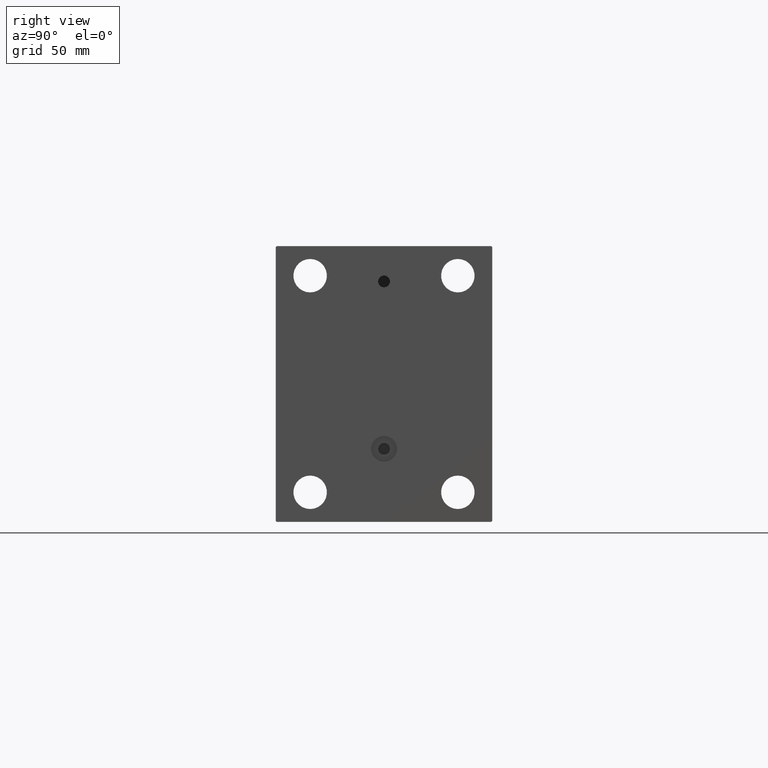
[diagram: clean part render]
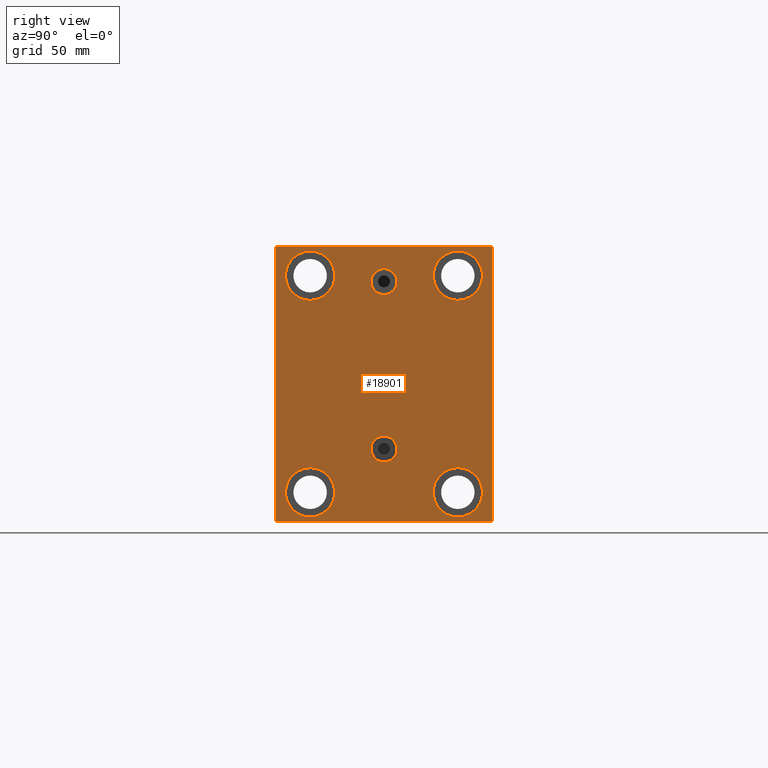
[diagram: same view with one face highlighted and labeled with its STEP entity id]
A machine part, right view. The second image highlights one B-rep face of the part: STEP entity #18901.
In plain terms, the highlighted planar face has unit normal (1, 0, 0).
Its self-contained STEP definition (entity closure, byte-faithful):
#317 = DIRECTION ( 'NONE',  ( 0.000000000000000000, 0.000000000000000000, 1.000000000000000000 ) ) ;
#388 = VERTEX_POINT ( 'NONE', #16621 ) ;
#605 = CARTESIAN_POINT ( 'NONE',  ( 253.0000000000000000, -62.25000000000230216, -62.24999999999712941 ) ) ;
#803 = CARTESIAN_POINT ( 'NONE',  ( 253.0000000000000000, 55.00000000000002132, -69.50000000000002842 ) ) ;
#809 = DIRECTION ( 'NONE',  ( 0.000000000000000000, 0.000000000000000000, 1.000000000000000000 ) ) ;
#1066 = VERTEX_POINT ( 'NONE', #24111 ) ;
#1365 = VERTEX_POINT ( 'NONE', #12222 ) ;
#1414 = VERTEX_POINT ( 'NONE', #22067 ) ;
#1540 = ORIENTED_EDGE ( 'NONE', *, *, #11971, .T. ) ;
#1947 = DIRECTION ( 'NONE',  ( 0.000000000000000000, 0.000000000000000000, 1.000000000000000000 ) ) ;
#1994 = DIRECTION ( 'NONE',  ( 0.000000000000000000, -1.000000000000000000, -1.261617073437677999E-16 ) ) ;
#2153 = CARTESIAN_POINT ( 'NONE',  ( 253.0000000000000000, 4.041334437186266200E-15, -39.58000000000000540 ) ) ;
#2290 = EDGE_CURVE ( 'NONE', #39698, #36345, #36201, .T. ) ;
#2447 = CARTESIAN_POINT ( 'NONE',  ( 253.0000000000000000, 55.00000000000002132, -70.00000000000000000 ) ) ;
#2729 = VECTOR ( 'NONE', #5757, 1000.000000000000000 ) ;
#3494 = VECTOR ( 'NONE', #14654, 1000.000000000000000 ) ;
#3721 = ORIENTED_EDGE ( 'NONE', *, *, #38364, .T. ) ;
#3973 = CARTESIAN_POINT ( 'NONE',  ( 253.0000000000000000, -7.970046508789298136E-15, 58.58000000000000540 ) ) ;
#3991 = AXIS2_PLACEMENT_3D ( 'NONE', #12975, #37383, #27029 ) ;
#4043 = DIRECTION ( 'NONE',  ( -1.000000000000000000, -0.000000000000000000, -0.000000000000000000 ) ) ;
#4110 = EDGE_LOOP ( 'NONE', ( #39768, #28266 ) ) ;
#4228 = CIRCLE ( 'NONE', #40256, 12.49999999999999645 ) ;
#4486 = VECTOR ( 'NONE', #1994, 1000.000000000000000 ) ;
#4827 = AXIS2_PLACEMENT_3D ( 'NONE', #39344, #18862, #22315 ) ;
#4860 = EDGE_LOOP ( 'NONE', ( #19212, #13251 ) ) ;
#4899 = EDGE_CURVE ( 'NONE', #33232, #37820, #39439, .T. ) ;
#4950 = CARTESIAN_POINT ( 'NONE',  ( 253.0000000000000000, 37.49999999999997868, -54.99999999999999289 ) ) ;
#5209 = ORIENTED_EDGE ( 'NONE', *, *, #12134, .T. ) ;
#5295 = AXIS2_PLACEMENT_3D ( 'NONE', #25244, #4043, #42728 ) ;
#5328 = LINE ( 'NONE', #23517, #24740 ) ;
#5558 = EDGE_CURVE ( 'NONE', #20883, #17616, #25520, .T. ) ;
#5757 = DIRECTION ( 'NONE',  ( -0.000000000000000000, -0.7071067811865279218, 0.7071067811865671127 ) ) ;
#5835 = FACE_OUTER_BOUND ( 'NONE', #42460, .T. ) ;
#5882 = DIRECTION ( 'NONE',  ( 0.000000000000000000, 0.000000000000000000, 1.000000000000000000 ) ) ;
#6310 = CIRCLE ( 'NONE', #37231, 12.49999999999999645 ) ;
#6511 = PLANE ( 'NONE',  #3991 ) ;
#6851 = EDGE_CURVE ( 'NONE', #37820, #33232, #30551, .T. ) ;
#7005 = VERTEX_POINT ( 'NONE', #7552 ) ;
#7106 = EDGE_LOOP ( 'NONE', ( #16206, #20495 ) ) ;
#7297 = DIRECTION ( 'NONE',  ( 0.000000000000000000, 0.000000000000000000, 1.000000000000000000 ) ) ;
#7552 = CARTESIAN_POINT ( 'NONE',  ( 253.0000000000000000, -37.50000000000000711, 67.50000000000000000 ) ) ;
#8750 = CIRCLE ( 'NONE', #24217, 12.49999999999999645 ) ;
#9196 = VERTEX_POINT ( 'NONE', #10287 ) ;
#9277 = FACE_BOUND ( 'NONE', #26364, .T. ) ;
#9510 = FACE_BOUND ( 'NONE', #4860, .T. ) ;
#9991 = DIRECTION ( 'NONE',  ( -1.000000000000000000, -0.000000000000000000, -0.000000000000000000 ) ) ;
#10287 = CARTESIAN_POINT ( 'NONE',  ( 253.0000000000000000, -37.50000000000000711, 42.50000000000000711 ) ) ;
#11358 = DIRECTION ( 'NONE',  ( 1.000000000000000000, 0.000000000000000000, 0.000000000000000000 ) ) ;
#11574 = DIRECTION ( 'NONE',  ( 0.000000000000000000, 1.000000000000000000, 2.523234146875355012E-16 ) ) ;
#11971 = EDGE_CURVE ( 'NONE', #20547, #1414, #44802, .T. ) ;
#12134 = EDGE_CURVE ( 'NONE', #32449, #19645, #4228, .T. ) ;
#12222 = CARTESIAN_POINT ( 'NONE',  ( 253.0000000000000000, -55.00000000000000711, -69.50000000000001421 ) ) ;
#12550 = EDGE_CURVE ( 'NONE', #25036, #1066, #16013, .T. ) ;
#12632 = ORIENTED_EDGE ( 'NONE', *, *, #27614, .T. ) ;
#12975 = CARTESIAN_POINT ( 'NONE',  ( 253.0000000000000000, 0.000000000000000000, 0.000000000000000000 ) ) ;
#13016 = CARTESIAN_POINT ( 'NONE',  ( 253.0000000000000000, -54.50000000000003553, -70.00000000000002842 ) ) ;
#13204 = FACE_BOUND ( 'NONE', #21681, .T. ) ;
#13251 = ORIENTED_EDGE ( 'NONE', *, *, #39453, .T. ) ;
#13421 = FACE_BOUND ( 'NONE', #43936, .T. ) ;
#13721 = AXIS2_PLACEMENT_3D ( 'NONE', #41995, #9991, #317 ) ;
#14076 = CARTESIAN_POINT ( 'NONE',  ( 253.0000000000000000, -55.00000000000000711, 69.50000000000004263 ) ) ;
#14089 = DIRECTION ( 'NONE',  ( -0.000000000000000000, 0.7071067811865474617, 0.7071067811865474617 ) ) ;
#14654 = DIRECTION ( 'NONE',  ( -0.000000000000000000, 0.7071067811865181518, -0.7071067811865769936 ) ) ;
#15777 = DIRECTION ( 'NONE',  ( -1.000000000000000000, -0.000000000000000000, -0.000000000000000000 ) ) ;
#16013 = CIRCLE ( 'NONE', #20406, 12.49999999999999645 ) ;
#16206 = ORIENTED_EDGE ( 'NONE', *, *, #36609, .T. ) ;
#16480 = LINE ( 'NONE', #29868, #4486 ) ;
#16526 = VERTEX_POINT ( 'NONE', #20726 ) ;
#16621 = CARTESIAN_POINT ( 'NONE',  ( 253.0000000000000000, 37.50000000000000711, 67.50000000000000000 ) ) ;
#16752 = VECTOR ( 'NONE', #19741, 1000.000000000000000 ) ;
#17073 = DIRECTION ( 'NONE',  ( 1.000000000000000000, 0.000000000000000000, -0.000000000000000000 ) ) ;
#17616 = VERTEX_POINT ( 'NONE', #27746 ) ;
#18225 = CARTESIAN_POINT ( 'NONE',  ( 253.0000000000000000, -37.50000000000000711, 55.00000000000000711 ) ) ;
#18680 = DIRECTION ( 'NONE',  ( 0.000000000000000000, 0.000000000000000000, 1.000000000000000000 ) ) ;
#18688 = ORIENTED_EDGE ( 'NONE', *, *, #24591, .T. ) ;
#18704 = AXIS2_PLACEMENT_3D ( 'NONE', #32512, #39650, #29062 ) ;
#18862 = DIRECTION ( 'NONE',  ( 1.000000000000000000, 0.000000000000000000, -0.000000000000000000 ) ) ;
#18901 = ADVANCED_FACE ( 'NONE', ( #13204, #9277, #13421, #9510, #38057, #37605, #5835 ), #6511, .T. ) ;
#19059 = CARTESIAN_POINT ( 'NONE',  ( 253.0000000000000000, -55.00000000000000711, 69.99999999999998579 ) ) ;
#19088 = EDGE_CURVE ( 'NONE', #17616, #20883, #40017, .T. ) ;
#19212 = ORIENTED_EDGE ( 'NONE', *, *, #23817, .T. ) ;
#19645 = VERTEX_POINT ( 'NONE', #19951 ) ;
#19741 = DIRECTION ( 'NONE',  ( 0.000000000000000000, -1.982541115402065110E-16, 1.000000000000000000 ) ) ;
#19844 = CIRCLE ( 'NONE', #37511, 12.49999999999999645 ) ;
#19848 = DIRECTION ( 'NONE',  ( -1.000000000000000000, -0.000000000000000000, -0.000000000000000000 ) ) ;
#19903 = CARTESIAN_POINT ( 'NONE',  ( 253.0000000000000000, 37.50000000000000711, 55.00000000000000711 ) ) ;
#19951 = CARTESIAN_POINT ( 'NONE',  ( 253.0000000000000000, 37.49999999999997868, -42.49999999999999289 ) ) ;
#20152 = DIRECTION ( 'NONE',  ( -1.000000000000000000, -0.000000000000000000, -0.000000000000000000 ) ) ;
#20341 = AXIS2_PLACEMENT_3D ( 'NONE', #24219, #17073, #42157 ) ;
#20406 = AXIS2_PLACEMENT_3D ( 'NONE', #39531, #21352, #7297 ) ;
#20495 = ORIENTED_EDGE ( 'NONE', *, *, #28875, .T. ) ;
#20547 = VERTEX_POINT ( 'NONE', #803 ) ;
#20726 = CARTESIAN_POINT ( 'NONE',  ( 253.0000000000000000, 37.50000000000000711, 42.50000000000000711 ) ) ;
#20883 = VERTEX_POINT ( 'NONE', #3973 ) ;
#21352 = DIRECTION ( 'NONE',  ( -1.000000000000000000, -0.000000000000000000, -0.000000000000000000 ) ) ;
#21681 = EDGE_LOOP ( 'NONE', ( #36559, #38720 ) ) ;
#21811 = ORIENTED_EDGE ( 'NONE', *, *, #32073, .T. ) ;
#22067 = CARTESIAN_POINT ( 'NONE',  ( 253.0000000000000000, 54.99999999999999289, 69.50000000000000000 ) ) ;
#22315 = DIRECTION ( 'NONE',  ( 0.000000000000000000, 0.000000000000000000, 1.000000000000000000 ) ) ;
#22592 = DIRECTION ( 'NONE',  ( -1.000000000000000000, -0.000000000000000000, -0.000000000000000000 ) ) ;
#23400 = CARTESIAN_POINT ( 'NONE',  ( 253.0000000000000000, -37.50000000000000711, 55.00000000000000711 ) ) ;
#23517 = CARTESIAN_POINT ( 'NONE',  ( 253.0000000000000000, -62.25000000000002132, 62.25000000000002132 ) ) ;
#23817 = EDGE_CURVE ( 'NONE', #9196, #7005, #6310, .T. ) ;
#24031 = AXIS2_PLACEMENT_3D ( 'NONE', #35997, #11358, #39448 ) ;
#24111 = CARTESIAN_POINT ( 'NONE',  ( 253.0000000000000000, -37.50000000000002132, -42.49999999999999289 ) ) ;
#24217 = AXIS2_PLACEMENT_3D ( 'NONE', #19903, #15777, #1947 ) ;
#24219 = CARTESIAN_POINT ( 'NONE',  ( 253.0000000000000000, 4.041334437186266200E-15, -33.00000000000000000 ) ) ;
#24591 = EDGE_CURVE ( 'NONE', #31620, #43234, #5328, .T. ) ;
#24740 = VECTOR ( 'NONE', #37550, 1000.000000000000114 ) ;
#24776 = VECTOR ( 'NONE', #33086, 1000.000000000000000 ) ;
#25036 = VERTEX_POINT ( 'NONE', #37445 ) ;
#25074 = EDGE_CURVE ( 'NONE', #43234, #1365, #26860, .T. ) ;
#25244 = CARTESIAN_POINT ( 'NONE',  ( 253.0000000000000000, -37.50000000000002132, -54.99999999999999289 ) ) ;
#25520 = CIRCLE ( 'NONE', #24031, 6.580000000000002736 ) ;
#25538 = CARTESIAN_POINT ( 'NONE',  ( 253.0000000000000000, -54.50000000000006395, 69.99999999999998579 ) ) ;
#26184 = ORIENTED_EDGE ( 'NONE', *, *, #41797, .T. ) ;
#26364 = EDGE_LOOP ( 'NONE', ( #44248, #27448 ) ) ;
#26541 = DIRECTION ( 'NONE',  ( 0.000000000000000000, 0.000000000000000000, 1.000000000000000000 ) ) ;
#26860 = LINE ( 'NONE', #19059, #24776 ) ;
#27029 = DIRECTION ( 'NONE',  ( 0.000000000000000000, 0.000000000000000000, -1.000000000000000000 ) ) ;
#27228 = AXIS2_PLACEMENT_3D ( 'NONE', #18225, #22592, #18680 ) ;
#27397 = VERTEX_POINT ( 'NONE', #38034 ) ;
#27448 = ORIENTED_EDGE ( 'NONE', *, *, #6851, .F. ) ;
#27614 = EDGE_CURVE ( 'NONE', #1414, #27397, #41425, .T. ) ;
#27746 = CARTESIAN_POINT ( 'NONE',  ( 253.0000000000000000, -8.775864102628257178E-15, 45.42000000000000171 ) ) ;
#27802 = CIRCLE ( 'NONE', #13721, 12.49999999999999645 ) ;
#27952 = CIRCLE ( 'NONE', #27228, 12.49999999999999645 ) ;
#28266 = ORIENTED_EDGE ( 'NONE', *, *, #43751, .T. ) ;
#28875 = EDGE_CURVE ( 'NONE', #388, #16526, #27802, .T. ) ;
#29062 = DIRECTION ( 'NONE',  ( 0.000000000000000000, 0.000000000000000000, -1.000000000000000000 ) ) ;
#29868 = CARTESIAN_POINT ( 'NONE',  ( 253.0000000000000000, 54.99999999999999289, 70.00000000000000000 ) ) ;
#30551 = CIRCLE ( 'NONE', #4827, 6.580000000000002736 ) ;
#30681 = VECTOR ( 'NONE', #14089, 1000.000000000000114 ) ;
#31620 = VERTEX_POINT ( 'NONE', #25538 ) ;
#31919 = EDGE_CURVE ( 'NONE', #1365, #39698, #32146, .T. ) ;
#32073 = EDGE_CURVE ( 'NONE', #36345, #20547, #34346, .T. ) ;
#32146 = LINE ( 'NONE', #605, #3494 ) ;
#32359 = DIRECTION ( 'NONE',  ( -1.000000000000000000, -0.000000000000000000, -0.000000000000000000 ) ) ;
#32449 = VERTEX_POINT ( 'NONE', #38432 ) ;
#32512 = CARTESIAN_POINT ( 'NONE',  ( 253.0000000000000000, -8.775864102628257178E-15, 52.00000000000000711 ) ) ;
#32744 = CARTESIAN_POINT ( 'NONE',  ( 253.0000000000000000, -55.00000000000000711, -70.00000000000002842 ) ) ;
#33086 = DIRECTION ( 'NONE',  ( 0.000000000000000000, 0.000000000000000000, -1.000000000000000000 ) ) ;
#33232 = VERTEX_POINT ( 'NONE', #2153 ) ;
#33816 = CARTESIAN_POINT ( 'NONE',  ( 253.0000000000000000, 4.847152031025224453E-15, -26.41999999999999815 ) ) ;
#33952 = CIRCLE ( 'NONE', #5295, 12.49999999999999645 ) ;
#34346 = LINE ( 'NONE', #35027, #30681 ) ;
#35027 = CARTESIAN_POINT ( 'NONE',  ( 253.0000000000000000, 62.25000000000002842, -62.25000000000002842 ) ) ;
#35997 = CARTESIAN_POINT ( 'NONE',  ( 253.0000000000000000, -8.775864102628257178E-15, 52.00000000000000711 ) ) ;
#36201 = LINE ( 'NONE', #32744, #45244 ) ;
#36345 = VERTEX_POINT ( 'NONE', #38925 ) ;
#36559 = ORIENTED_EDGE ( 'NONE', *, *, #19088, .F. ) ;
#36609 = EDGE_CURVE ( 'NONE', #16526, #388, #8750, .T. ) ;
#36672 = CARTESIAN_POINT ( 'NONE',  ( 253.0000000000000000, 37.49999999999997868, -54.99999999999999289 ) ) ;
#37231 = AXIS2_PLACEMENT_3D ( 'NONE', #23400, #20152, #5882 ) ;
#37383 = DIRECTION ( 'NONE',  ( 1.000000000000000000, 0.000000000000000000, 0.000000000000000000 ) ) ;
#37445 = CARTESIAN_POINT ( 'NONE',  ( 253.0000000000000000, -37.50000000000002132, -67.49999999999998579 ) ) ;
#37511 = AXIS2_PLACEMENT_3D ( 'NONE', #36672, #19848, #26541 ) ;
#37526 = CARTESIAN_POINT ( 'NONE',  ( 253.0000000000000000, 62.25000000000152767, 62.24999999999806732 ) ) ;
#37550 = DIRECTION ( 'NONE',  ( 0.000000000000000000, -0.7071067811865474617, -0.7071067811865474617 ) ) ;
#37605 = FACE_BOUND ( 'NONE', #4110, .T. ) ;
#37820 = VERTEX_POINT ( 'NONE', #33816 ) ;
#38034 = CARTESIAN_POINT ( 'NONE',  ( 253.0000000000000000, 54.50000000000002132, 70.00000000000000000 ) ) ;
#38057 = FACE_BOUND ( 'NONE', #7106, .T. ) ;
#38364 = EDGE_CURVE ( 'NONE', #19645, #32449, #19844, .T. ) ;
#38432 = CARTESIAN_POINT ( 'NONE',  ( 253.0000000000000000, 37.49999999999997868, -67.49999999999998579 ) ) ;
#38720 = ORIENTED_EDGE ( 'NONE', *, *, #5558, .F. ) ;
#38925 = CARTESIAN_POINT ( 'NONE',  ( 253.0000000000000000, 54.50000000000004974, -70.00000000000000000 ) ) ;
#39344 = CARTESIAN_POINT ( 'NONE',  ( 253.0000000000000000, 4.041334437186266200E-15, -33.00000000000000000 ) ) ;
#39439 = CIRCLE ( 'NONE', #20341, 6.580000000000002736 ) ;
#39448 = DIRECTION ( 'NONE',  ( 0.000000000000000000, 0.000000000000000000, -1.000000000000000000 ) ) ;
#39453 = EDGE_CURVE ( 'NONE', #7005, #9196, #27952, .T. ) ;
#39531 = CARTESIAN_POINT ( 'NONE',  ( 253.0000000000000000, -37.50000000000002132, -54.99999999999999289 ) ) ;
#39650 = DIRECTION ( 'NONE',  ( 1.000000000000000000, 0.000000000000000000, 0.000000000000000000 ) ) ;
#39698 = VERTEX_POINT ( 'NONE', #13016 ) ;
#39768 = ORIENTED_EDGE ( 'NONE', *, *, #12550, .T. ) ;
#40017 = CIRCLE ( 'NONE', #18704, 6.580000000000002736 ) ;
#40256 = AXIS2_PLACEMENT_3D ( 'NONE', #4950, #32359, #809 ) ;
#41425 = LINE ( 'NONE', #37526, #2729 ) ;
#41797 = EDGE_CURVE ( 'NONE', #27397, #31620, #16480, .T. ) ;
#41995 = CARTESIAN_POINT ( 'NONE',  ( 253.0000000000000000, 37.50000000000000711, 55.00000000000000711 ) ) ;
#42157 = DIRECTION ( 'NONE',  ( 0.000000000000000000, 0.000000000000000000, 1.000000000000000000 ) ) ;
#42460 = EDGE_LOOP ( 'NONE', ( #26184, #18688, #44479, #43437, #44485, #21811, #1540, #12632 ) ) ;
#42728 = DIRECTION ( 'NONE',  ( 0.000000000000000000, 0.000000000000000000, 1.000000000000000000 ) ) ;
#43234 = VERTEX_POINT ( 'NONE', #14076 ) ;
#43437 = ORIENTED_EDGE ( 'NONE', *, *, #31919, .T. ) ;
#43751 = EDGE_CURVE ( 'NONE', #1066, #25036, #33952, .T. ) ;
#43936 = EDGE_LOOP ( 'NONE', ( #5209, #3721 ) ) ;
#44248 = ORIENTED_EDGE ( 'NONE', *, *, #4899, .F. ) ;
#44479 = ORIENTED_EDGE ( 'NONE', *, *, #25074, .T. ) ;
#44485 = ORIENTED_EDGE ( 'NONE', *, *, #2290, .T. ) ;
#44802 = LINE ( 'NONE', #2447, #16752 ) ;
#45244 = VECTOR ( 'NONE', #11574, 1000.000000000000000 ) ;